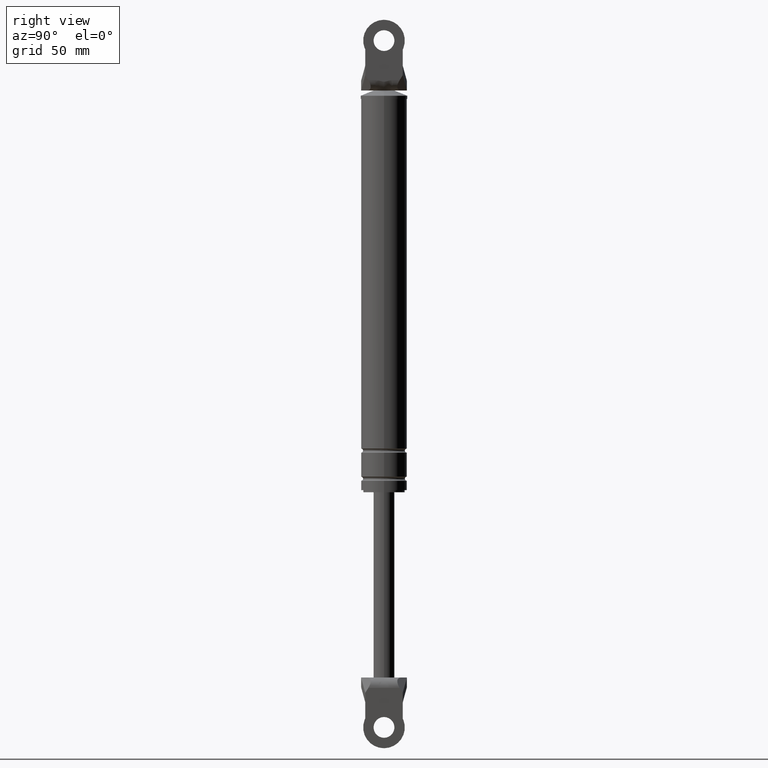
[diagram: clean part render]
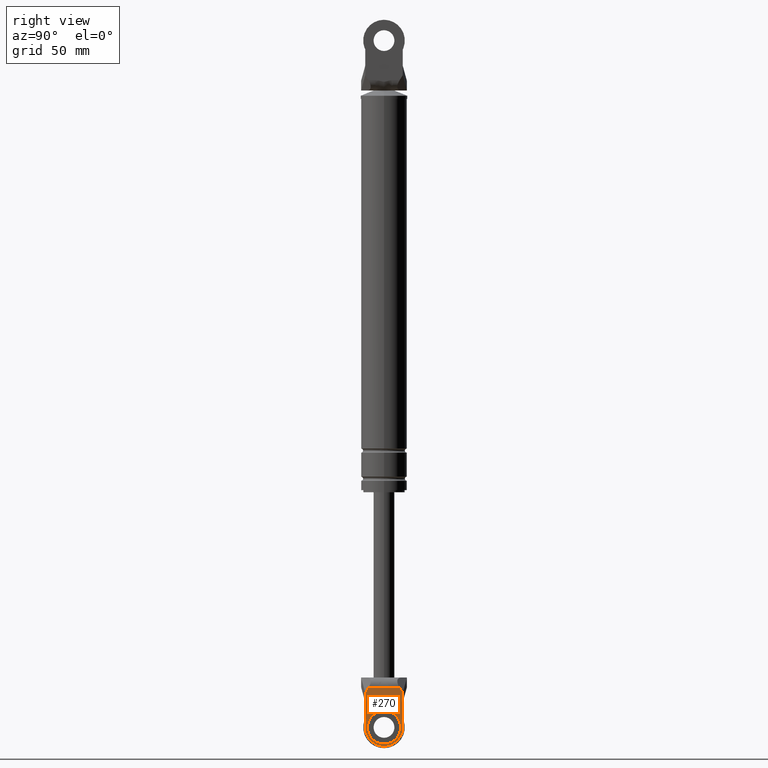
[diagram: same view with one face highlighted and labeled with its STEP entity id]
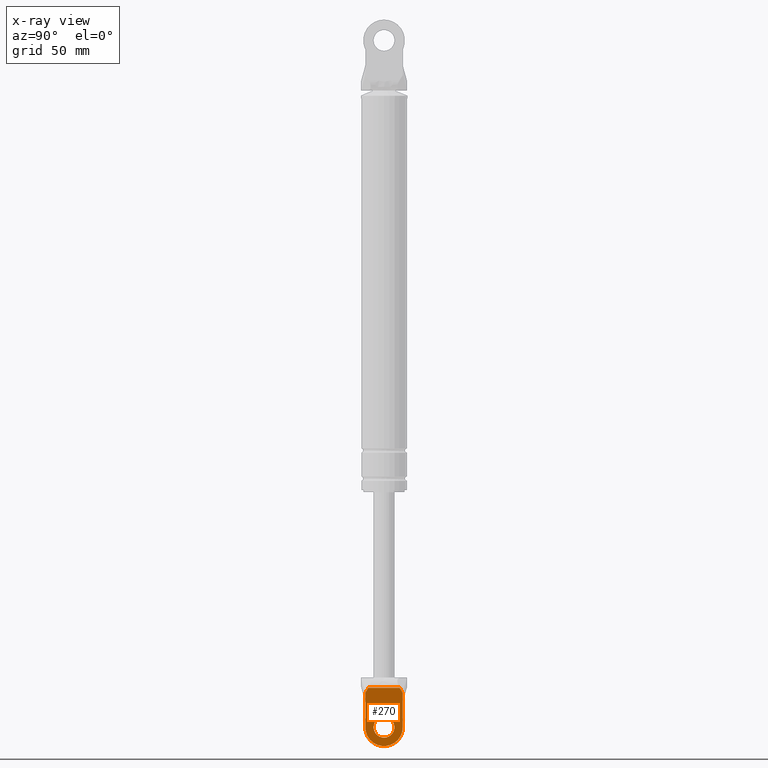
[diagram: x-ray of the same camera — body ghosted, the highlighted face saturated]
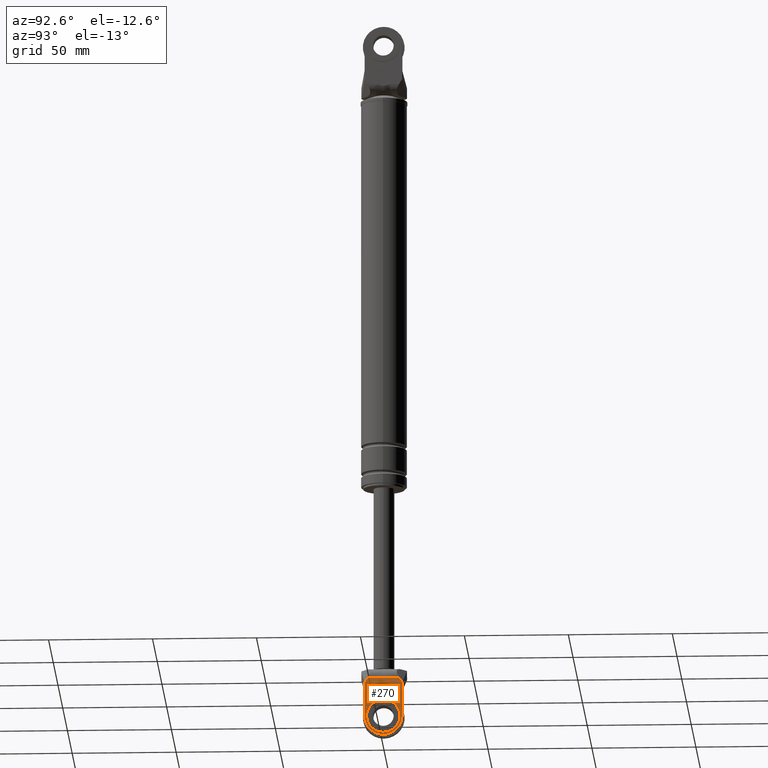
[diagram: same view with one face highlighted and labeled with its STEP entity id]
A machine part, right view. The second image highlights one B-rep face of the part: STEP entity #270.
The next image is the same camera in x-ray: the body ghosted, the highlighted face saturated — about 0% of this face is hidden behind the body in this view.
A second angle (auxiliary view) of the same face is appended — the face is thin or edge-on in the first view.
In plain terms, the highlighted planar face has unit normal (1, 0, 0).
Its self-contained STEP definition (entity closure, byte-faithful):
#270=ADVANCED_FACE('',(#956,#957),#955,.T.);
#955=PLANE('',#1634);
#956=FACE_OUTER_BOUND('',#1635,.T.);
#957=FACE_BOUND('',#1636,.T.);
#1631=CARTESIAN_POINT('',(7.00000000000E+000,-1.08000008639E+001,-1.95088870872E+002));
#1632=DIRECTION('',(1.00000000000E+000,0.00000000000E+000,0.00000000000E+000));
#1633=DIRECTION('',(0.00000000000E+000,0.00000000000E+000,-1.00000000000E+000));
#1634=AXIS2_PLACEMENT_3D('',#1631,#1632,#1633);
#1635=EDGE_LOOP('',(#2075,#2076,#2077,#2078,#2079,#2080,#2081,#2082,#2083,#2084));
#1636=EDGE_LOOP('',(#2085,#2086));
#2075=ORIENTED_EDGE('',*,*,#2310,.T.);
#2076=ORIENTED_EDGE('',*,*,#2289,.T.);
#2077=ORIENTED_EDGE('',*,*,#2330,.T.);
#2078=ORIENTED_EDGE('',*,*,#2331,.T.);
#2079=ORIENTED_EDGE('',*,*,#2305,.T.);
#2080=ORIENTED_EDGE('',*,*,#2332,.F.);
#2081=ORIENTED_EDGE('',*,*,#2311,.F.);
#2082=ORIENTED_EDGE('',*,*,#2315,.T.);
#2083=ORIENTED_EDGE('',*,*,#2318,.F.);
#2084=ORIENTED_EDGE('',*,*,#2328,.T.);
#2085=ORIENTED_EDGE('',*,*,#2333,.F.);
#2086=ORIENTED_EDGE('',*,*,#2334,.F.);
#2289=EDGE_CURVE('',#3199,#3220,#3227,.T.);
#2305=EDGE_CURVE('',#3337,#3330,#3338,.T.);
#2310=EDGE_CURVE('',#3351,#3199,#3371,.T.);
#2311=EDGE_CURVE('',#3377,#3378,#3379,.T.);
#2315=EDGE_CURVE('',#3377,#3405,#3406,.T.);
#2318=EDGE_CURVE('',#3425,#3405,#3426,.T.);
#2328=EDGE_CURVE('',#3425,#3351,#3491,.T.);
#2330=EDGE_CURVE('',#3220,#3503,#3504,.T.);
#2331=EDGE_CURVE('',#3503,#3337,#3510,.T.);
#2332=EDGE_CURVE('',#3378,#3330,#3516,.T.);
#2333=EDGE_CURVE('',#3522,#3523,#3524,.T.);
#2334=EDGE_CURVE('',#3523,#3522,#3530,.T.);
#3199=VERTEX_POINT('',#4188);
#3220=VERTEX_POINT('',#4200);
#3227=LINE('',#4205,#4206);
#3330=VERTEX_POINT('',#4266);
#3337=VERTEX_POINT('',#4270);
#3338=LINE('',#4271,#4272);
#3351=VERTEX_POINT('',#4278);
#3371=LINE('',#4289,#4290);
#3377=VERTEX_POINT('',#4292);
#3378=VERTEX_POINT('',#4293);
#3379=LINE('',#4294,#4295);
#3405=VERTEX_POINT('',#4308);
#3406=CIRCLE('',#4312,9.00000000000E+000);
#3425=VERTEX_POINT('',#4321);
#3426=LINE('',#4322,#4323);
#3491=LINE('',#4359,#4360);
#3503=VERTEX_POINT('',#4365);
#3504=(BOUNDED_CURVE() B_SPLINE_CURVE(3,(#4366,#4367,#4368,#4369,#4370,#4371),.UNSPECIFIED.,.F.,.F.) B_SPLINE_CURVE_WITH_KNOTS((4,2,4),(0.00000000000E+000,2.23783750894E-003,4.47567501788E-003),.UNSPECIFIED.) CURVE() GEOMETRIC_REPRESENTATION_ITEM() RATIONAL_B_SPLINE_CURVE((1.00000000000E+000,1.00000000000E+000,1.00000000000E+000,1.00000000000E+000,1.00000000000E+000,1.00000000000E+000)) REPRESENTATION_ITEM('') );
#3510=LINE('',#4372,#4373);
#3516=LINE('',#4375,#4376);
#3522=VERTEX_POINT('',#4378);
#3523=VERTEX_POINT('',#4379);
#3524=CIRCLE('',#4383,5.00000000000E+000);
#3530=CIRCLE('',#4387,5.00000000000E+000);
#4188=CARTESIAN_POINT('',(7.00000000000E+000,7.51280740496E+000,-1.98000015000E+002));
#4200=CARTESIAN_POINT('',(7.00000000000E+000,2.23606797750E+000,-1.98000015000E+002));
#4205=CARTESIAN_POINT('',(7.00000000000E+000,7.51280740496E+000,-1.98000015000E+002));
#4206=VECTOR('',#4207,5.27673942746E+000);
#4207=DIRECTION('',(0.00000000000E+000,-1.00000000000E+000,0.00000000000E+000));
#4266=CARTESIAN_POINT('',(7.00000000000E+000,-9.00000000000E+000,-2.00379525618E+002));
#4270=CARTESIAN_POINT('',(7.00000000000E+000,-7.51280740496E+000,-1.98000015000E+002));
#4271=CARTESIAN_POINT('',(7.00000000000E+000,-7.51280740496E+000,-1.98000015000E+002));
#4272=VECTOR('',#4273,2.80603146760E+000);
#4273=DIRECTION('',(0.00000000000E+000,-5.29998544994E-001,-8.47998550886E-001));
#4278=CARTESIAN_POINT('',(7.00000000000E+000,9.00000000000E+000,-2.00379525618E+002));
#4289=CARTESIAN_POINT('',(7.00000000000E+000,9.00000000000E+000,-2.00379525618E+002));
#4290=VECTOR('',#4291,2.80603146760E+000);
#4291=DIRECTION('',(0.00000000000E+000,-5.29998544994E-001,8.47998550886E-001));
#4292=CARTESIAN_POINT('',(7.00000000000E+000,-9.00000000000E+000,-2.17000014215E+002));
#4293=CARTESIAN_POINT('',(7.00000000000E+000,-9.00000000000E+000,-2.05000015000E+002));
#4294=CARTESIAN_POINT('',(7.00000000000E+000,-9.00000000000E+000,-2.17000014215E+002));
#4295=VECTOR('',#4296,1.19999992146E+001);
#4296=DIRECTION('',(0.00000000000E+000,0.00000000000E+000,1.00000000000E+000));
#4308=CARTESIAN_POINT('',(7.00000000000E+000,9.00000000000E+000,-2.17000015000E+002));
#4309=CARTESIAN_POINT('',(7.00000000000E+000,3.58204186421E-014,-2.17000015000E+002));
#4310=DIRECTION('',(1.00000000000E+000,0.00000000000E+000,0.00000000000E+000));
#4311=DIRECTION('',(-0.00000000000E+000,-0.00000000000E+000,1.00000000000E+000));
#4312=AXIS2_PLACEMENT_3D('',#4309,#4310,#4311);
#4321=CARTESIAN_POINT('',(7.00000000000E+000,9.00000000000E+000,-2.05000015000E+002));
#4322=CARTESIAN_POINT('',(7.00000000000E+000,9.00000000000E+000,-2.05000015000E+002));
#4323=VECTOR('',#4324,1.20000000000E+001);
#4324=DIRECTION('',(0.00000000000E+000,0.00000000000E+000,-1.00000000000E+000));
#4359=CARTESIAN_POINT('',(7.00000000000E+000,9.00000000000E+000,-2.05000015000E+002));
#4360=VECTOR('',#4361,4.62048938173E+000);
#4361=DIRECTION('',(0.00000000000E+000,0.00000000000E+000,1.00000000000E+000));
#4365=CARTESIAN_POINT('',(7.00000000000E+000,-2.23606797750E+000,-1.98000015000E+002));
#4366=CARTESIAN_POINT('',(7.00000000000E+000,2.23606797750E+000,-1.98000015000E+002));
#4367=CARTESIAN_POINT('',(7.00000000000E+000,1.48981762792E+000,-1.98000015000E+002));
#4368=CARTESIAN_POINT('',(7.00000000000E+000,7.45452759221E-001,-1.97899014059E+002));
#4369=CARTESIAN_POINT('',(7.00000000000E+000,-7.44938146996E-001,-1.97898974919E+002));
#4370=CARTESIAN_POINT('',(7.00000000000E+000,-1.48943110925E+000,-1.98000015000E+002));
#4371=CARTESIAN_POINT('',(7.00000000000E+000,-2.23606797750E+000,-1.98000015000E+002));
#4372=CARTESIAN_POINT('',(7.00000000000E+000,-2.23606797750E+000,-1.98000015000E+002));
#4373=VECTOR('',#4374,5.27673942746E+000);
#4374=DIRECTION('',(0.00000000000E+000,-1.00000000000E+000,0.00000000000E+000));
#4375=CARTESIAN_POINT('',(7.00000000000E+000,-9.00000000000E+000,-2.05000015000E+002));
#4376=VECTOR('',#4377,4.62048938173E+000);
#4377=DIRECTION('',(0.00000000000E+000,0.00000000000E+000,1.00000000000E+000));
#4378=CARTESIAN_POINT('',(7.00000000000E+000,3.58231962612E-014,-2.12000015000E+002));
#4379=CARTESIAN_POINT('',(7.00000000000E+000,3.58204186421E-014,-2.22000015000E+002));
#4380=CARTESIAN_POINT('',(7.00000000000E+000,3.58204186421E-014,-2.17000015000E+002));
#4381=DIRECTION('',(1.00000000000E+000,0.00000000000E+000,0.00000000000E+000));
#4382=DIRECTION('',(0.00000000000E+000,-1.22460635382E-016,-1.00000000000E+000));
#4383=AXIS2_PLACEMENT_3D('',#4380,#4381,#4382);
#4384=CARTESIAN_POINT('',(7.00000000000E+000,3.58204186421E-014,-2.17000015000E+002));
#4385=DIRECTION('',(1.00000000000E+000,0.00000000000E+000,0.00000000000E+000));
#4386=DIRECTION('',(0.00000000000E+000,-1.22460635382E-016,-1.00000000000E+000));
#4387=AXIS2_PLACEMENT_3D('',#4384,#4385,#4386);